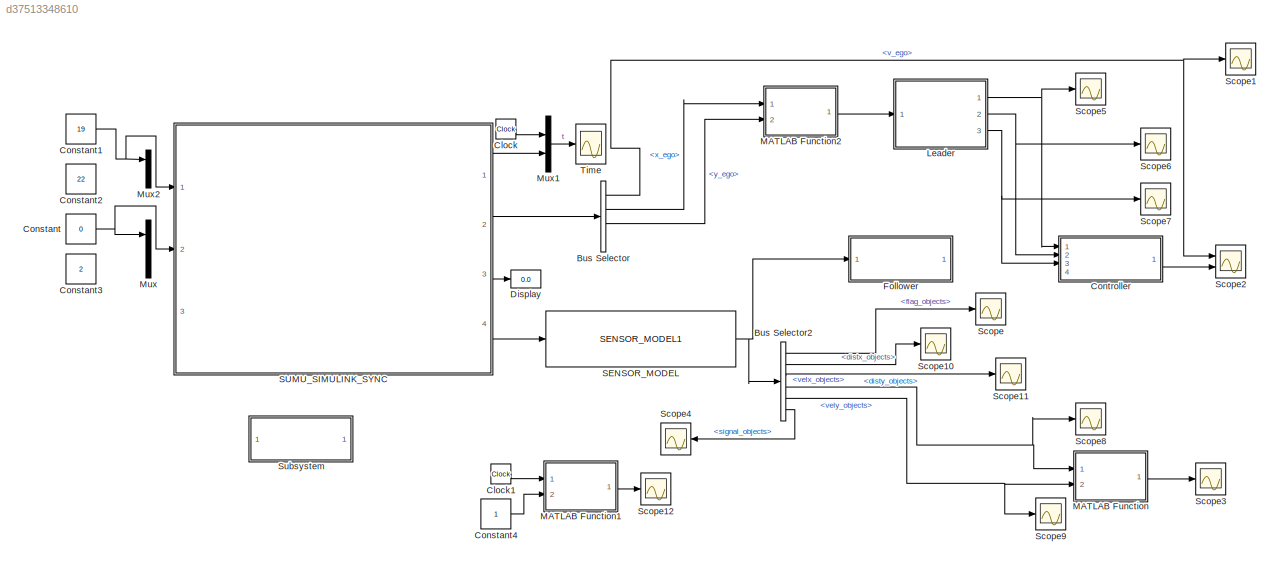
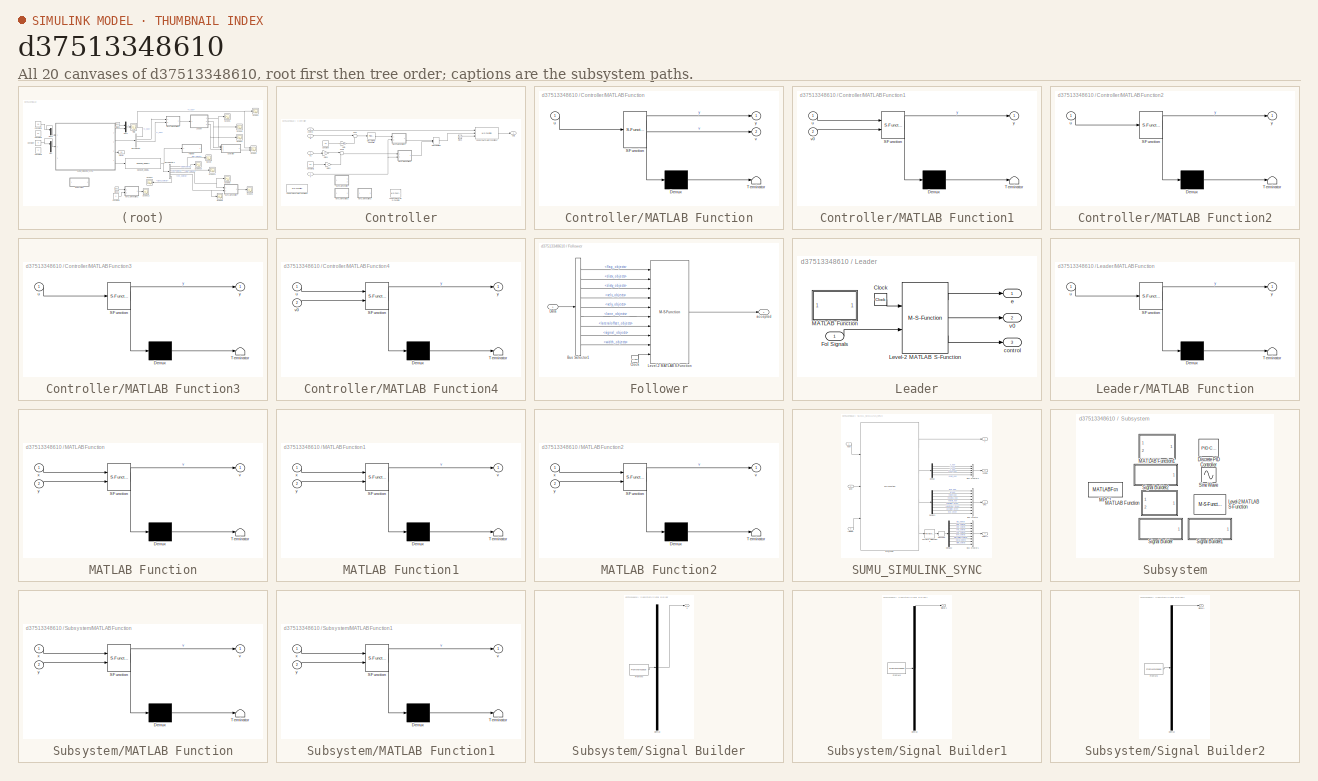
[diagram: thumbnail index - all 20 canvases of the model, root first then tree order]
MODEL slx_d37513348610
KIND model
CONFIG AbsTol = auto
CONFIG EnableMultiTasking = on
CONFIG FixedStep = auto
CONFIG MaxStep = auto
CONFIG MinStep = auto
CONFIG RelTol = 1e-3
CONFIG SampleTimeConstraint = Unconstrained
CONFIG Solver = FixedStepDiscrete
CONFIG SolverName = FixedStepDiscrete
CONFIG StartTime = 0.0
CONFIG StopTime = inf
WORKSPACE source: external: MATLAB File  (data not in archive)
BLOCK [BusSelector] Bus Selector
  OutputAsBus = off
  OutputSignals = v_ego,x_ego,y_ego,travel_ego
  Ports = [1, 4]
BLOCK [BusSelector] Bus Selector2
  OutputAsBus = off
  OutputSignals = flag_objects,distx_objects,disty_objects,velx_objects,vely_objects,signal_objects
  Ports = [1, 6]
BLOCK [Clock] Clock
BLOCK [Clock] Clock1
BLOCK [Constant] Constant
  Value = 0
BLOCK [Constant] Constant1
  Value = 19
BLOCK [Constant] Constant2
  Value = 22
BLOCK [Constant] Constant3
  Value = 2
BLOCK [Constant] Constant4
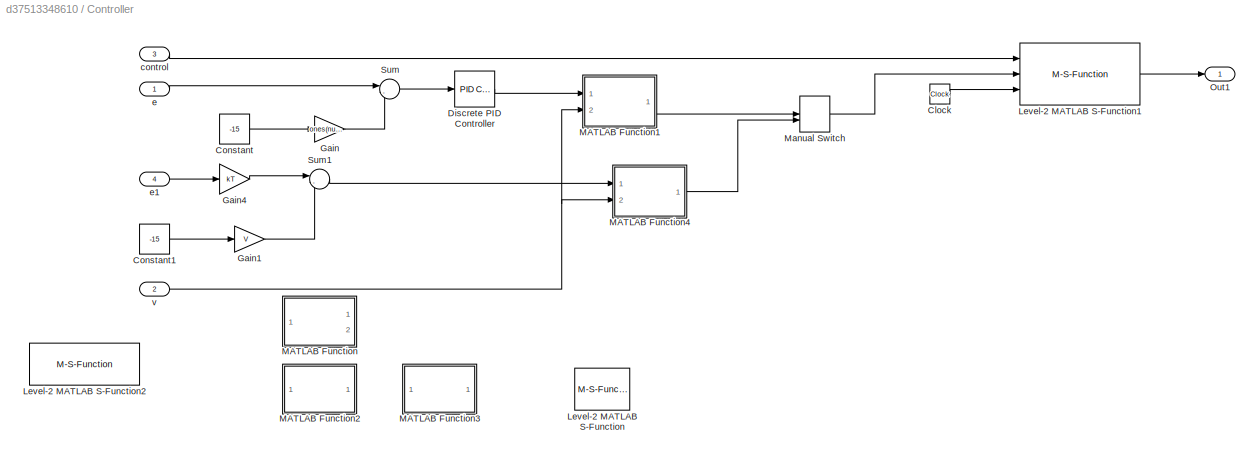
BLOCK [SubSystem] Controller
  Commented = on
  Ports = [4, 1]
  RequestExecContextInheritance = off
BLOCK [Clock] Controller/Clock
BLOCK [Constant] Controller/Constant
  Value = -15
BLOCK [Constant] Controller/Constant1
  Value = -15
BLOCK [Reference] Controller/Discrete PID Controller  REF=simulink/Continuous/PID Controller
  Ports = [1, 1]
  SourceBlock = simulink/Continuous/PID Controller
  SourceProductBaseCode = SL
  SourceProductName = Simulink
  SourceType = PID 1dof
BLOCK [Gain] Controller/Gain
  Gain = ones(numOfObj,1)
  OutDataTypeStr = Inherit: Inherit via internal rule
  ParamDataTypeStr = Inherit: Inherit via internal rule
  SaturateOnIntegerOverflow = off
BLOCK [Gain] Controller/Gain1
  Gain = V
  OutDataTypeStr = Inherit: Inherit via internal rule
  ParamDataTypeStr = Inherit: Inherit via internal rule
  SaturateOnIntegerOverflow = off
BLOCK [Gain] Controller/Gain4
  Gain = kT
  Multiplication = Matrix(K*u)
  OutDataTypeStr = Inherit: Inherit via internal rule
  ParamDataTypeStr = Inherit: Inherit via internal rule
  SaturateOnIntegerOverflow = off
BLOCK [M-S-Function] Controller/Level-2 MATLAB S-Function
  Commented = on
  FunctionName = follower123
  Parameters = numOfObj
  Ports = [1, 2]
BLOCK [M-S-Function] Controller/Level-2 MATLAB S-Function1
  FunctionName = controllerSpeed
  Parameters = numOfObj,Td
  Ports = [3, 1]
BLOCK [M-S-Function] Controller/Level-2 MATLAB S-Function2
  Commented = on
  FunctionName = speed
  Parameters = numOfObj
  Ports = [2, 1]
BLOCK [SubSystem] Controller/MATLAB Function
  Commented = on
  ErrorFcn = Stateflow.Translate.translate
  PermitHierarchicalResolution = ExplicitOnly
  Ports = [1, 2]
  RequestExecContextInheritance = off
  SFBlockType = MATLAB Function
  TreatAsAtomicUnit = on
BLOCK [Demux] Controller/MATLAB Function/ Demux 
  Outputs = 1
  Ports = [1, 1]
BLOCK [S-Function] Controller/MATLAB Function/ SFunction 
  EnableBusSupport = on
  FunctionName = sf_sfun
  PortCounts = [1 3]
  Ports = [1, 3]
  SFcnIsStateOwnerBlock = off
  SFunctionDeploymentMode = off
  Tag = Stateflow S-Function Example_SOMU_SYNC 5
BLOCK [Terminator] Controller/MATLAB Function/ Terminator 
BLOCK [Inport] Controller/MATLAB Function/u
  IconDisplay = Port number
BLOCK [Outport] Controller/MATLAB Function/v
  IconDisplay = Port number
  Port = 2
BLOCK [Outport] Controller/MATLAB Function/y
  IconDisplay = Port number
BLOCK [SubSystem] Controller/MATLAB Function1
  ErrorFcn = Stateflow.Translate.translate
  PermitHierarchicalResolution = ExplicitOnly
  Ports = [2, 1]
  RequestExecContextInheritance = off
  SFBlockType = MATLAB Function
  TreatAsAtomicUnit = on
BLOCK [Demux] Controller/MATLAB Function1/ Demux 
  Outputs = 1
  Ports = [1, 1]
BLOCK [S-Function] Controller/MATLAB Function1/ SFunction 
  EnableBusSupport = on
  FunctionName = sf_sfun
  Parameters = Td
  PortCounts = [2 2]
  Ports = [2, 2]
  SFcnIsStateOwnerBlock = off
  SFunctionDeploymentMode = off
  Tag = Stateflow S-Function Example_SOMU_SYNC 6
BLOCK [Terminator] Controller/MATLAB Function1/ Terminator 
BLOCK [Inport] Controller/MATLAB Function1/u
  IconDisplay = Port number
BLOCK [Inport] Controller/MATLAB Function1/v0
  IconDisplay = Port number
  Port = 2
BLOCK [Outport] Controller/MATLAB Function1/y
  IconDisplay = Port number
BLOCK [SubSystem] Controller/MATLAB Function2
  Commented = on
  ErrorFcn = Stateflow.Translate.translate
  PermitHierarchicalResolution = ExplicitOnly
  Ports = [1, 1]
  RequestExecContextInheritance = off
  SFBlockType = MATLAB Function
  TreatAsAtomicUnit = on
BLOCK [Demux] Controller/MATLAB Function2/ Demux 
  Outputs = 1
  Ports = [1, 1]
BLOCK [S-Function] Controller/MATLAB Function2/ SFunction 
  EnableBusSupport = on
  FunctionName = sf_sfun
  PortCounts = [1 2]
  Ports = [1, 2]
  SFcnIsStateOwnerBlock = off
  SFunctionDeploymentMode = off
  Tag = Stateflow S-Function Example_SOMU_SYNC 7
BLOCK [Terminator] Controller/MATLAB Function2/ Terminator 
BLOCK [Inport] Controller/MATLAB Function2/u
  IconDisplay = Port number
BLOCK [Outport] Controller/MATLAB Function2/y
  IconDisplay = Port number
BLOCK [SubSystem] Controller/MATLAB Function3
  Commented = on
  ErrorFcn = Stateflow.Translate.translate
  PermitHierarchicalResolution = ExplicitOnly
  Ports = [1, 1]
  RequestExecContextInheritance = off
  SFBlockType = MATLAB Function
  TreatAsAtomicUnit = on
BLOCK [Demux] Controller/MATLAB Function3/ Demux 
  Outputs = 1
  Ports = [1, 1]
BLOCK [S-Function] Controller/MATLAB Function3/ SFunction 
  EnableBusSupport = on
  FunctionName = sf_sfun
  PortCounts = [1 2]
  Ports = [1, 2]
  SFcnIsStateOwnerBlock = off
  SFunctionDeploymentMode = off
  Tag = Stateflow S-Function Example_SOMU_SYNC 9
BLOCK [Terminator] Controller/MATLAB Function3/ Terminator 
BLOCK [Inport] Controller/MATLAB Function3/u
  IconDisplay = Port number
BLOCK [Outport] Controller/MATLAB Function3/y
  IconDisplay = Port number
BLOCK [SubSystem] Controller/MATLAB Function4
  ErrorFcn = Stateflow.Translate.translate
  PermitHierarchicalResolution = ExplicitOnly
  Ports = [2, 1]
  RequestExecContextInheritance = off
  SFBlockType = MATLAB Function
  TreatAsAtomicUnit = on
BLOCK [Demux] Controller/MATLAB Function4/ Demux 
  Outputs = 1
  Ports = [1, 1]
BLOCK [S-Function] Controller/MATLAB Function4/ SFunction 
  EnableBusSupport = on
  FunctionName = sf_sfun
  Parameters = Td
  PortCounts = [2 2]
  Ports = [2, 2]
  SFcnIsStateOwnerBlock = off
  SFunctionDeploymentMode = off
  Tag = Stateflow S-Function Example_SOMU_SYNC 11
BLOCK [Terminator] Controller/MATLAB Function4/ Terminator 
BLOCK [Inport] Controller/MATLAB Function4/u
  IconDisplay = Port number
BLOCK [Inport] Controller/MATLAB Function4/v0
  IconDisplay = Port number
  Port = 2
BLOCK [Outport] Controller/MATLAB Function4/y
  IconDisplay = Port number
BLOCK [ManualSwitch] Controller/Manual Switch
  CurrentSetting = 0
BLOCK [Outport] Controller/Out1
  IconDisplay = Port number
BLOCK [Sum] Controller/Sum
  IconShape = round
  InputSameDT = off
  Inputs = |-+
  OutDataTypeStr = Inherit: Inherit via internal rule
  Ports = [2, 1]
  SaturateOnIntegerOverflow = off
BLOCK [Sum] Controller/Sum1
  IconShape = round
  InputSameDT = off
  Inputs = |-+
  OutDataTypeStr = Inherit: Inherit via internal rule
  Ports = [2, 1]
  SaturateOnIntegerOverflow = off
BLOCK [Inport] Controller/control
  IconDisplay = Port number
  Port = 3
BLOCK [Inport] Controller/e
  IconDisplay = Port number
BLOCK [Inport] Controller/e1
  IconDisplay = Port number
  Port = 4
BLOCK [Inport] Controller/v
  IconDisplay = Port number
  Port = 2
BLOCK [Display] Display
  Decimation = 1
  Format = long
  Ports = [1]
BLOCK [SubSystem] Follower
  Commented = on
  Ports = [1, 1]
  RequestExecContextInheritance = off
BLOCK [BusSelector] Follower/Bus Selector1
  OutputAsBus = off
  OutputSignals = flag_objects,distx_objects,disty_objects,velx_objects,vely_objects,lane_objects,lateraloffset_objects,signal_objects,width_objects
  Ports = [1, 9]
BLOCK [Clock] Follower/Clock
BLOCK [Inport] Follower/Data
  IconDisplay = Port number
BLOCK [M-S-Function] Follower/Level-2 MATLAB S-Function
  FunctionName = followerGUI
  Parameters = numOfObj,Td
  Ports = [10, 1]
BLOCK [Outport] Follower/accepted
  IconDisplay = Port number
BLOCK [SubSystem] Leader
  Commented = on
  Ports = [1, 3]
  RequestExecContextInheritance = off
BLOCK [Clock] Leader/Clock
BLOCK [Inport] Leader/Fol Signals
  IconDisplay = Port number
BLOCK [M-S-Function] Leader/Level-2 MATLAB S-Function
  FunctionName = leaderGUI
  Parameters = numOfObj,Td
  Ports = [2, 3]
BLOCK [SubSystem] Leader/MATLAB Function
  Commented = on
  ErrorFcn = Stateflow.Translate.translate
  PermitHierarchicalResolution = ExplicitOnly
  Ports = [1, 1]
  RequestExecContextInheritance = off
  SFBlockType = MATLAB Function
  TreatAsAtomicUnit = on
BLOCK [Demux] Leader/MATLAB Function/ Demux 
  Outputs = 1
  Ports = [1, 1]
BLOCK [S-Function] Leader/MATLAB Function/ SFunction 
  EnableBusSupport = on
  FunctionName = sf_sfun
  PortCounts = [1 2]
  Ports = [1, 2]
  SFcnIsStateOwnerBlock = off
  SFunctionDeploymentMode = off
  Tag = Stateflow S-Function Example_SOMU_SYNC 4
BLOCK [Terminator] Leader/MATLAB Function/ Terminator 
BLOCK [Inport] Leader/MATLAB Function/u
  IconDisplay = Port number
BLOCK [Outport] Leader/MATLAB Function/y
  IconDisplay = Port number
BLOCK [Outport] Leader/control
  IconDisplay = Port number
  Port = 3
BLOCK [Outport] Leader/e
  IconDisplay = Port number
BLOCK [Outport] Leader/v0
  IconDisplay = Port number
  Port = 2
BLOCK [SubSystem] MATLAB Function
  ErrorFcn = Stateflow.Translate.translate
  PermitHierarchicalResolution = ExplicitOnly
  Ports = [2, 1]
  RequestExecContextInheritance = off
  SFBlockType = MATLAB Function
  TreatAsAtomicUnit = on
BLOCK [Demux] MATLAB Function/ Demux 
  Outputs = 1
  Ports = [1, 1]
BLOCK [S-Function] MATLAB Function/ SFunction 
  EnableBusSupport = on
  FunctionName = sf_sfun
  PortCounts = [2 2]
  Ports = [2, 2]
  SFcnIsStateOwnerBlock = off
  SFunctionDeploymentMode = off
  Tag = Stateflow S-Function Example_SOMU_SYNC 8
BLOCK [Terminator] MATLAB Function/ Terminator 
BLOCK [Outport] MATLAB Function/v
  IconDisplay = Port number
BLOCK [Inport] MATLAB Function/x
  IconDisplay = Port number
BLOCK [Inport] MATLAB Function/y
  IconDisplay = Port number
  Port = 2
BLOCK [SubSystem] MATLAB Function1
  ErrorFcn = Stateflow.Translate.translate
  PermitHierarchicalResolution = ExplicitOnly
  Ports = [2, 1]
  RequestExecContextInheritance = off
  SFBlockType = MATLAB Function
  TreatAsAtomicUnit = on
BLOCK [Demux] MATLAB Function1/ Demux 
  Outputs = 1
  Ports = [1, 1]
BLOCK [S-Function] MATLAB Function1/ SFunction 
  EnableBusSupport = on
  FunctionName = sf_sfun
  PortCounts = [2 2]
  Ports = [2, 2]
  SFcnIsStateOwnerBlock = off
  SFunctionDeploymentMode = off
  Tag = Stateflow S-Function Example_SOMU_SYNC 10
BLOCK [Terminator] MATLAB Function1/ Terminator 
BLOCK [Outport] MATLAB Function1/v
  IconDisplay = Port number
BLOCK [Inport] MATLAB Function1/x
  IconDisplay = Port number
BLOCK [Inport] MATLAB Function1/y
  IconDisplay = Port number
  Port = 2
BLOCK [SubSystem] MATLAB Function2
  Commented = on
  ErrorFcn = Stateflow.Translate.translate
  PermitHierarchicalResolution = ExplicitOnly
  Ports = [2, 1]
  RequestExecContextInheritance = off
  SFBlockType = MATLAB Function
  TreatAsAtomicUnit = on
BLOCK [Demux] MATLAB Function2/ Demux 
  Outputs = 1
  Ports = [1, 1]
BLOCK [S-Function] MATLAB Function2/ SFunction 
  EnableBusSupport = on
  FunctionName = sf_sfun
  PortCounts = [2 2]
  Ports = [2, 2]
  SFcnIsStateOwnerBlock = off
  SFunctionDeploymentMode = off
  Tag = Stateflow S-Function Example_SOMU_SYNC 3
BLOCK [Terminator] MATLAB Function2/ Terminator 
BLOCK [Outport] MATLAB Function2/v
  IconDisplay = Port number
BLOCK [Inport] MATLAB Function2/x
  IconDisplay = Port number
BLOCK [Inport] MATLAB Function2/y
  IconDisplay = Port number
  Port = 2
BLOCK [Mux] Mux
  DisplayOption = bar
  Inputs = 3
  Ports = [3, 1]
BLOCK [Mux] Mux1
  DisplayOption = bar
  Inputs = 2
  Ports = [2, 1]
BLOCK [Mux] Mux2
  DisplayOption = bar
  Inputs = 3
  Ports = [3, 1]
BLOCK [Reference] SENSOR_MODEL  REF=Lib_SENSOR/SENSOR_MODEL1
  Ports = [1, 1]
  SourceBlock = Lib_SENSOR/SENSOR_MODEL1
  SourceType = SENSOR MODELS
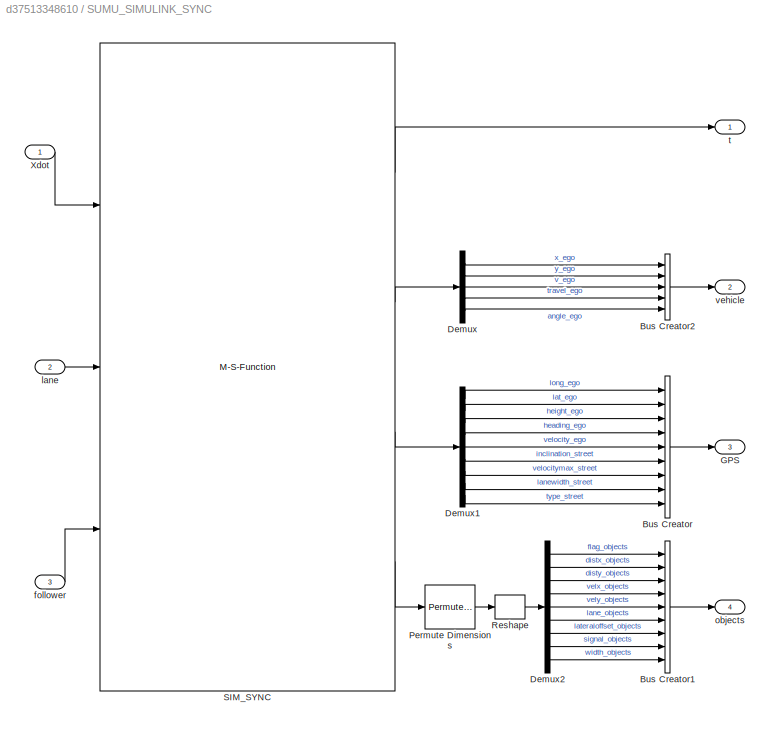
BLOCK [SubSystem] SUMU_SIMULINK_SYNC
  AncestorBlock = Lib_SUMOInterface/SUMU_SIMULINK_SYNC
  Ports = [3, 4]
  RequestExecContextInheritance = off
BLOCK [BusCreator] SUMU_SIMULINK_SYNC/Bus Creator
  DisplayOption = bar
  InheritFromInputs = on
  Inputs = 9
  Ports = [9, 1]
BLOCK [BusCreator] SUMU_SIMULINK_SYNC/Bus Creator1
  DisplayOption = bar
  InheritFromInputs = on
  Inputs = 9
  Ports = [9, 1]
BLOCK [BusCreator] SUMU_SIMULINK_SYNC/Bus Creator2
  DisplayOption = bar
  InheritFromInputs = on
  Inputs = 5
  Ports = [5, 1]
BLOCK [Demux] SUMU_SIMULINK_SYNC/Demux
  DisplayOption = bar
  Outputs = 5
  Ports = [1, 5]
BLOCK [Demux] SUMU_SIMULINK_SYNC/Demux1
  DisplayOption = bar
  Outputs = 9
  Ports = [1, 9]
BLOCK [Demux] SUMU_SIMULINK_SYNC/Demux2
  DisplayOption = bar
  Outputs = [-1,-1,-1,-1,-1,-1,-1,-1,-1]
  Ports = [1, 9]
BLOCK [Outport] SUMU_SIMULINK_SYNC/GPS
  IconDisplay = Port number
  Port = 3
BLOCK [PermuteDimensions] SUMU_SIMULINK_SYNC/Permute Dimensions
BLOCK [Reshape] SUMU_SIMULINK_SYNC/Reshape
  Ports = [1, 1]
BLOCK [M-S-Function] SUMU_SIMULINK_SYNC/SIM_SYNC
  FunctionName = sf2SUMO_SYNC
  Parameters = SumoTs,EgoName,NumVehicles,SumoCfg,SumoIP,SumoPort,SumoGui,SumoOptions,NumTLights,SensorRange
  Ports = [3, 4]
BLOCK [Inport] SUMU_SIMULINK_SYNC/Xdot
  IconDisplay = Port number
BLOCK [Inport] SUMU_SIMULINK_SYNC/follower
  IconDisplay = Port number
  Port = 3
BLOCK [Inport] SUMU_SIMULINK_SYNC/lane
  IconDisplay = Port number
  Port = 2
BLOCK [Outport] SUMU_SIMULINK_SYNC/objects
  IconDisplay = Port number
  Port = 4
BLOCK [Outport] SUMU_SIMULINK_SYNC/t
  IconDisplay = Port number
BLOCK [Outport] SUMU_SIMULINK_SYNC/vehicle
  IconDisplay = Port number
  Port = 2
BLOCK [Scope] Scope
  Floating = off
  NumInputPorts = 1
  Ports = [1]
  ScopeSpecificationString = Simulink.scopes.TimeScopeBlockCfg('CurrentConfiguration', extmgr.ConfigurationSet(extmgr.Configuration('Core','General UI',true),extmgr.Configuration('Core','Source UI',true),extmgr.Configuration('Sources','WiredSimulink',true,'DataLoggingVariableName','ScopeData1'),extmgr.Configuration('Visuals','Time Domain',true,'SerializedDisplays',{struct('MinYLimReal','-0.25','MaxYLimReal','2.25','YLabelReal...<+1860ch>
BLOCK [Scope] Scope1
  Commented = on
  Floating = off
  NumInputPorts = 1
  Ports = [1]
  ScopeSpecificationString = Simulink.scopes.TimeScopeBlockCfg('CurrentConfiguration', extmgr.ConfigurationSet(extmgr.Configuration('Core','General UI',true),extmgr.Configuration('Core','Source UI',true),extmgr.Configuration('Sources','WiredSimulink',true,'DataLoggingVariableName','ScopeData1'),extmgr.Configuration('Visuals','Time Domain',true,'SerializedDisplays',{struct('MinYLimReal','-2.875','MaxYLimReal','25.875','YLabelR...<+1431ch>
BLOCK [Scope] Scope10
  Floating = off
  NumInputPorts = 1
  Ports = [1]
  ScopeSpecificationString = Simulink.scopes.TimeScopeBlockCfg('CurrentConfiguration', extmgr.ConfigurationSet(extmgr.Configuration('Core','General UI',true),extmgr.Configuration('Core','Source UI',true),extmgr.Configuration('Sources','WiredSimulink',true,'DataLoggingVariableName','ScopeData3'),extmgr.Configuration('Visuals','Time Domain',true,'SerializedDisplays',{struct('MinYLimReal','-253.67576','MaxYLimReal','245.77951','...<+1645ch>
BLOCK [Scope] Scope11
  Floating = off
  NumInputPorts = 1
  Ports = [1]
  ScopeSpecificationString = Simulink.scopes.TimeScopeBlockCfg('CurrentConfiguration', extmgr.ConfigurationSet(extmgr.Configuration('Core','General UI',true),extmgr.Configuration('Core','Source UI',true),extmgr.Configuration('Sources','WiredSimulink',true,'DataLoggingVariableName','ScopeData4'),extmgr.Configuration('Visuals','Time Domain',true,'SerializedDisplays',{struct('MinYLimReal','-24.88093','MaxYLimReal','223.92838','Y...<+1641ch>
BLOCK [Scope] Scope12
  Floating = off
  NumInputPorts = 1
  Ports = [1]
  ScopeSpecificationString = Simulink.scopes.TimeScopeBlockCfg('CurrentConfiguration', extmgr.ConfigurationSet(extmgr.Configuration('Core','General UI',true),extmgr.Configuration('Core','Source UI',true),extmgr.Configuration('Sources','WiredSimulink',true,'DataLoggingVariableName','ScopeData1'),extmgr.Configuration('Visuals','Time Domain',true,'SerializedDisplays',{struct('MinYLimReal','-3.27189','MaxYLimReal','29.44705','YLa...<+1635ch>
BLOCK [Scope] Scope2
  Commented = on
  Floating = off
  NumInputPorts = 2
  Ports = [2]
  ScopeSpecificationString = Simulink.scopes.TimeScopeBlockCfg('CurrentConfiguration', extmgr.ConfigurationSet(extmgr.Configuration('Core','General UI',true),extmgr.Configuration('Core','Source UI',true),extmgr.Configuration('Sources','WiredSimulink',true,'DataLoggingVariableName','ScopeData1'),extmgr.Configuration('Visuals','Time Domain',true,'SerializedDisplays',{struct('MinYLimReal','-5.82429','MaxYLimReal','42.41862','YLa...<+1845ch>
BLOCK [Scope] Scope3
  Floating = off
  NumInputPorts = 1
  Ports = [1]
  ScopeSpecificationString = Simulink.scopes.TimeScopeBlockCfg('CurrentConfiguration', extmgr.ConfigurationSet(extmgr.Configuration('Core','General UI',true),extmgr.Configuration('Core','Source UI',true),extmgr.Configuration('Sources','WiredSimulink',true,'DataLoggingVariableName','ScopeData2'),extmgr.Configuration('Visuals','Time Domain',true,'SerializedDisplays',{struct('MinYLimReal','-3.27189','MaxYLimReal','29.44705','YLa...<+1635ch>
BLOCK [Scope] Scope4
  Commented = on
  Floating = off
  NumInputPorts = 1
  Ports = [1]
  ScopeSpecificationString = Simulink.scopes.TimeScopeBlockCfg('CurrentConfiguration', extmgr.ConfigurationSet(extmgr.Configuration('Core','General UI',true),extmgr.Configuration('Core','Source UI',true),extmgr.Configuration('Sources','WiredSimulink',true,'DataLoggingVariableName','ScopeData3'),extmgr.Configuration('Visuals','Time Domain',true,'SerializedDisplays',{struct('MinYLimReal','-1.00000','MaxYLimReal','1.00000','YLab...<+1598ch>
BLOCK [Scope] Scope5
  Commented = on
  Floating = off
  NumInputPorts = 1
  Ports = [1]
  ScopeSpecificationString = Simulink.scopes.TimeScopeBlockCfg('CurrentConfiguration', extmgr.ConfigurationSet(extmgr.Configuration('Core','General UI',true),extmgr.Configuration('Core','Source UI',true),extmgr.Configuration('Sources','WiredSimulink',true,'DataLoggingVariableName','ScopeData4'),extmgr.Configuration('Visuals','Time Domain',true,'SerializedDisplays',{struct('MinYLimReal','-76.66441','MaxYLimReal','8.51827','YLa...<+1546ch>
BLOCK [Scope] Scope6
  Commented = on
  Floating = off
  NumInputPorts = 1
  Ports = [1]
  ScopeSpecificationString = Simulink.scopes.TimeScopeBlockCfg('CurrentConfiguration', extmgr.ConfigurationSet(extmgr.Configuration('Core','General UI',true),extmgr.Configuration('Core','Source UI',true),extmgr.Configuration('Sources','WiredSimulink',true,'DataLoggingVariableName','ScopeData1'),extmgr.Configuration('Visuals','Time Domain',true,'SerializedDisplays',{struct('MinYLimReal','-3.62378','MaxYLimReal','32.61406','YLa...<+1565ch>
BLOCK [Scope] Scope7
  Commented = on
  Floating = off
  NumInputPorts = 1
  Ports = [1]
  ScopeSpecificationString = Simulink.scopes.TimeScopeBlockCfg('CurrentConfiguration', extmgr.ConfigurationSet(extmgr.Configuration('Core','General UI',true),extmgr.Configuration('Core','Source UI',true),extmgr.Configuration('Sources','WiredSimulink',true,'DataLoggingVariableName','ScopeData2'),extmgr.Configuration('Visuals','Time Domain',true,'SerializedDisplays',{struct('MinYLimReal','-0.125','MaxYLimReal','1.125','YLabelRe...<+1399ch>
BLOCK [Scope] Scope8
  Floating = off
  NumInputPorts = 1
  Ports = [1]
  ScopeSpecificationString = Simulink.scopes.TimeScopeBlockCfg('CurrentConfiguration', extmgr.ConfigurationSet(extmgr.Configuration('Core','General UI',true),extmgr.Configuration('Core','Source UI',true),extmgr.Configuration('Sources','WiredSimulink',true,'DataLoggingVariableName','ScopeData1'),extmgr.Configuration('Visuals','Time Domain',true,'SerializedDisplays',{struct('MinYLimReal','-4.95151','MaxYLimReal','44.56361','YLa...<+1533ch>
BLOCK [Scope] Scope9
  Floating = off
  NumInputPorts = 1
  Ports = [1]
  ScopeSpecificationString = Simulink.scopes.TimeScopeBlockCfg('CurrentConfiguration', extmgr.ConfigurationSet(extmgr.Configuration('Core','General UI',true),extmgr.Configuration('Core','Source UI',true),extmgr.Configuration('Sources','WiredSimulink',true,'DataLoggingVariableName','ScopeData2'),extmgr.Configuration('Visuals','Time Domain',true,'SerializedDisplays',{struct('MinYLimReal','-4.95151','MaxYLimReal','44.56361','YLa...<+1533ch>
BLOCK [SubSystem] Subsystem
  Commented = on
  Ports = []
  RequestExecContextInheritance = off
BLOCK [Reference] Subsystem/Discrete PID Controller  REF=simulink/Continuous/PID Controller
  Commented = on
  Ports = [1, 1]
  SourceBlock = simulink/Continuous/PID Controller
  SourceProductBaseCode = SL
  SourceProductName = Simulink
  SourceType = PID 1dof
BLOCK [M-S-Function] Subsystem/Level-2 MATLAB S-Function
  Commented = on
  FunctionName = leader_veh
  Ports = [1, 1]
BLOCK [SubSystem] Subsystem/MATLAB Function
  Commented = on
  ErrorFcn = Stateflow.Translate.translate
  PermitHierarchicalResolution = ExplicitOnly
  Ports = [2, 1]
  RequestExecContextInheritance = off
  SFBlockType = MATLAB Function
  TreatAsAtomicUnit = on
BLOCK [Demux] Subsystem/MATLAB Function/ Demux 
  Outputs = 1
  Ports = [1, 1]
BLOCK [S-Function] Subsystem/MATLAB Function/ SFunction 
  EnableBusSupport = on
  FunctionName = sf_sfun
  PortCounts = [2 2]
  Ports = [2, 2]
  SFcnIsStateOwnerBlock = off
  SFunctionDeploymentMode = off
  Tag = Stateflow S-Function Example_SOMU_SYNC 2
BLOCK [Terminator] Subsystem/MATLAB Function/ Terminator 
BLOCK [Outport] Subsystem/MATLAB Function/v
  IconDisplay = Port number
BLOCK [Inport] Subsystem/MATLAB Function/x
  IconDisplay = Port number
BLOCK [Inport] Subsystem/MATLAB Function/y
  IconDisplay = Port number
  Port = 2
BLOCK [SubSystem] Subsystem/MATLAB Function1
  Commented = on
  ErrorFcn = Stateflow.Translate.translate
  PermitHierarchicalResolution = ExplicitOnly
  Ports = [2, 1]
  RequestExecContextInheritance = off
  SFBlockType = MATLAB Function
  TreatAsAtomicUnit = on
BLOCK [Demux] Subsystem/MATLAB Function1/ Demux 
  Outputs = 1
  Ports = [1, 1]
BLOCK [S-Function] Subsystem/MATLAB Function1/ SFunction 
  EnableBusSupport = on
  FunctionName = sf_sfun
  PortCounts = [2 2]
  Ports = [2, 2]
  SFcnIsStateOwnerBlock = off
  SFunctionDeploymentMode = off
  Tag = Stateflow S-Function Example_SOMU_SYNC 1
BLOCK [Terminator] Subsystem/MATLAB Function1/ Terminator 
BLOCK [Outport] Subsystem/MATLAB Function1/v
  IconDisplay = Port number
BLOCK [Inport] Subsystem/MATLAB Function1/x
  IconDisplay = Port number
BLOCK [Inport] Subsystem/MATLAB Function1/y
  IconDisplay = Port number
  Port = 2
BLOCK [MATLABFcn] Subsystem/MPC1
  Commented = on
  MATLABFcn = MPCController1(u(1:2),u(3),u(4))
  Ports = [1, 1]
BLOCK [SubSystem] Subsystem/Signal Builder
  ClipboardFcn = sigbuilder_block('clipboard');
  CloseFcn = sigbuilder_block('close');
  Commented = on
  ContinueFcn = sigbuilder_block('continue');
  CopyFcn = sigbuilder_block('copy');
  DeleteFcn = sigbuilder_block('delete');
  LoadFcn = sigbuilder_block('load');
  MaskHideContents = on
  ModelCloseFcn = sigbuilder_block('modelClose');
  NameChangeFcn = sigbuilder_block('namechange');
  OpenFcn = sigbuilder_block('open',[435.75 150.75 549 361.5 ]);
  PauseFcn = sigbuilder_block('pause');
  Ports = [0, 1]
  PreSaveFcn = sigbuilder_block('preSave');
  RequestExecContextInheritance = off
  StartFcn = sigbuilder_block('start');
  StopFcn = sigbuilder_block('stop');
  Tag = STV Subsys
BLOCK [Demux] Subsystem/Signal Builder/Demux
  Outputs = 1
  Ports = [1, 1]
  Tag = STV Demux
BLOCK [FromWorkspace] Subsystem/Signal Builder/FromWs
  SampleTime = 0
  Tag = STV FromWs
  VariableName = tuvar
  ZeroCross = on
BLOCK [Outport] Subsystem/Signal Builder/v
  IconDisplay = Port number
  Tag = STV Outport
BLOCK [SubSystem] Subsystem/Signal Builder1
  ClipboardFcn = sigbuilder_block('clipboard');
  CloseFcn = sigbuilder_block('close');
  Commented = on
  ContinueFcn = sigbuilder_block('continue');
  CopyFcn = sigbuilder_block('copy');
  DeleteFcn = sigbuilder_block('delete');
  LoadFcn = sigbuilder_block('load');
  MaskHideContents = on
  ModelCloseFcn = sigbuilder_block('modelClose');
  NameChangeFcn = sigbuilder_block('namechange');
  OpenFcn = sigbuilder_block('open',[437.25 199.5 550.5 399.75 ]);
  PauseFcn = sigbuilder_block('pause');
  Ports = [0, 1]
  PreSaveFcn = sigbuilder_block('preSave');
  RequestExecContextInheritance = off
  StartFcn = sigbuilder_block('start');
  StopFcn = sigbuilder_block('stop');
  Tag = STV Subsys
BLOCK [Demux] Subsystem/Signal Builder1/Demux
  Outputs = 1
  Ports = [1, 1]
  Tag = STV Demux
BLOCK [FromWorkspace] Subsystem/Signal Builder1/FromWs
  SampleTime = 0
  Tag = STV FromWs
  VariableName = tuvar
  ZeroCross = on
BLOCK [Outport] Subsystem/Signal Builder1/Signal 1
  IconDisplay = Port number
  Tag = STV Outport
BLOCK [SubSystem] Subsystem/Signal Builder2
  ClipboardFcn = sigbuilder_block('clipboard');
  CloseFcn = sigbuilder_block('close');
  Commented = on
  ContinueFcn = sigbuilder_block('continue');
  CopyFcn = sigbuilder_block('copy');
  DeleteFcn = sigbuilder_block('delete');
  LoadFcn = sigbuilder_block('load');
  MaskHideContents = on
  ModelCloseFcn = sigbuilder_block('modelClose');
  NameChangeFcn = sigbuilder_block('namechange');
  OpenFcn = sigbuilder_block('open',[6 30 1012.5 447.75 ]);
  PauseFcn = sigbuilder_block('pause');
  Ports = [0, 1]
  PreSaveFcn = sigbuilder_block('preSave');
  RequestExecContextInheritance = off
  StartFcn = sigbuilder_block('start');
  StopFcn = sigbuilder_block('stop');
  Tag = STV Subsys
BLOCK [Demux] Subsystem/Signal Builder2/Demux
  Outputs = 1
  Ports = [1, 1]
  Tag = STV Demux
BLOCK [FromWorkspace] Subsystem/Signal Builder2/FromWs
  SampleTime = 0
  Tag = STV FromWs
  VariableName = tuvar
  ZeroCross = on
BLOCK [Outport] Subsystem/Signal Builder2/Signal 1
  IconDisplay = Port number
  Tag = STV Outport
BLOCK [Sin] Subsystem/Sine Wave
  Bias = 20
  Commented = on
  Frequency = 0.1
  Ports = [0, 1]
  SampleTime = 0
BLOCK [Scope] Time
  Floating = off
  NumInputPorts = 1
  Ports = [1]
  ScopeSpecificationString = Simulink.scopes.TimeScopeBlockCfg('CurrentConfiguration', extmgr.ConfigurationSet(extmgr.Configuration('Core','General UI',true,'FigureColor',[1 1 1]),extmgr.Configuration('Core','Source UI',true),extmgr.Configuration('Sources','WiredSimulink',true,'DataLoggingVariableName','ScopeData1','DataLoggingSaveFormat','StructureWithTime','DataLoggingDecimation','1','DataLoggingDecimateData',true),extmgr.C...<+2881ch>
LINE Bus Selector2:1 -> Scope:1
LINE Bus Selector2:2 -> Scope10:1
LINE Bus Selector2:3 -> Scope11:1
NET Bus Selector2:4 -> MATLAB Function:1, Scope8:1
NET Bus Selector2:5 -> MATLAB Function:2, Scope9:1
LINE Bus Selector2:6 -> Scope4:1
NET Bus Selector:1 -> Scope1:1, Scope2:1
LINE Bus Selector:2 -> MATLAB Function2:1
LINE Bus Selector:3 -> MATLAB Function2:2
LINE Clock1:1 -> MATLAB Function1:1
LINE Clock:1 -> Mux1:1
NET Constant1:1 -> Mux2:1, SUMU_SIMULINK_SYNC:1
LINE Constant4:1 -> MATLAB Function1:2
NET Constant:1 -> Mux:1, SUMU_SIMULINK_SYNC:2
LINE Controller/Clock:1 -> Controller/Level-2 MATLAB S-Function1:3
LINE Controller/Constant1:1 -> Controller/Gain1:1
LINE Controller/Constant:1 -> Controller/Gain:1
LINE Controller/Discrete PID Controller:1 -> Controller/MATLAB Function1:1
LINE Controller/Gain1:1 -> Controller/Sum1:2
LINE Controller/Gain4:1 -> Controller/Sum1:1
LINE Controller/Gain:1 -> Controller/Sum:2
LINE Controller/Level-2 MATLAB S-Function1:1 -> Controller/Out1:1
LINE Controller/MATLAB Function1:1 -> Controller/Manual Switch:1
LINE Controller/MATLAB Function4:1 -> Controller/Manual Switch:2
LINE Controller/Manual Switch:1 -> Controller/Level-2 MATLAB S-Function1:2
LINE Controller/Sum1:1 -> Controller/MATLAB Function4:1
LINE Controller/Sum:1 -> Controller/Discrete PID Controller:1
LINE Controller/control:1 -> Controller/Level-2 MATLAB S-Function1:1
LINE Controller/e1:1 -> Controller/Gain4:1
LINE Controller/e:1 -> Controller/Sum:1
NET Controller/v:1 -> Controller/MATLAB Function1:2, Controller/MATLAB Function4:2
LINE Controller:1 -> Scope2:2
LINE Follower/Bus Selector1:1 -> Follower/Level-2 MATLAB S-Function:1
LINE Follower/Bus Selector1:2 -> Follower/Level-2 MATLAB S-Function:2
LINE Follower/Bus Selector1:3 -> Follower/Level-2 MATLAB S-Function:3
LINE Follower/Bus Selector1:4 -> Follower/Level-2 MATLAB S-Function:4
LINE Follower/Bus Selector1:5 -> Follower/Level-2 MATLAB S-Function:5
LINE Follower/Bus Selector1:6 -> Follower/Level-2 MATLAB S-Function:6
LINE Follower/Bus Selector1:7 -> Follower/Level-2 MATLAB S-Function:7
LINE Follower/Bus Selector1:8 -> Follower/Level-2 MATLAB S-Function:8
LINE Follower/Bus Selector1:9 -> Follower/Level-2 MATLAB S-Function:9
LINE Follower/Clock:1 -> Follower/Level-2 MATLAB S-Function:10
LINE Follower/Data:1 -> Follower/Bus Selector1:1
LINE Follower/Level-2 MATLAB S-Function:1 -> Follower/accepted:1
LINE Leader/Clock:1 -> Leader/Level-2 MATLAB S-Function:1
LINE Leader/Fol Signals:1 -> Leader/Level-2 MATLAB S-Function:2
LINE Leader/Level-2 MATLAB S-Function:1 -> Leader/e:1
LINE Leader/Level-2 MATLAB S-Function:2 -> Leader/v0:1
LINE Leader/Level-2 MATLAB S-Function:3 -> Leader/control:1
NET Leader:1 -> Controller:1, Scope5:1
NET Leader:2 -> Controller:2, Scope6:1
NET Leader:3 -> Controller:3, Scope7:1
LINE MATLAB Function1:1 -> Scope12:1
LINE MATLAB Function2:1 -> Leader:1
LINE MATLAB Function:1 -> Scope3:1
LINE Mux1:1 -> Time:1
NET SENSOR_MODEL:1 -> Bus Selector2:1, Follower:1
LINE SUMU_SIMULINK_SYNC:1 -> Mux1:2
LINE SUMU_SIMULINK_SYNC:2 -> Bus Selector:1
LINE SUMU_SIMULINK_SYNC:3 -> Display:1
LINE SUMU_SIMULINK_SYNC:4 -> SENSOR_MODEL:1
note: NET lines group one-source signal fan-out (src -> all destinations, sorted); 1:1 wires keep LINE
CHART Subsystem/MATLAB Function1 states=1 transitions=1
  STATE_LABEL 'eML_blk_kernel()'
  STATE_LABEL 'SCRIPT:\nfunction v = fcn(x,y)\n\nv = -sqrt(x.^2 + y.^2) + 4;\n'
CHART Subsystem/MATLAB Function states=1 transitions=1
  STATE_LABEL 'eML_blk_kernel()'
  STATE_LABEL 'SCRIPT:\nfunction v = fcn(x,y)\n\nv = sqrt(x.^2 + y.^2);\n'
CHART MATLAB Function2 states=1 transitions=1
  STATE_LABEL 'eML_blk_kernel()'
  STATE_LABEL 'SCRIPT:\nfunction v = fcn(x,y)\n\nv = sqrt(x.^2 + y.^2);\n'
CHART Leader/MATLAB Function states=1 transitions=1
  STATE_LABEL 'eML_blk_kernel()'
  STATE_LABEL "SCRIPT:\nfunction y = fcn(u)\n\nif traci.vehicle.getSignals('x') == 13\n    traci.vehicle.setSignals('ego',12);\nend\ny = u;\n"
CHART Controller/MATLAB Function states=1 transitions=1
  STATE_LABEL 'eML_blk_kernel()'
  STATE_LABEL "SCRIPT:\nfunction [y ,v] = fcn(u)\n\nglobal IDsVeh;\n\nif u(find(strcmp({'x'}, IDsVeh))) == 1\n    s_leader   = traci.vehicle.getDistance('ego');\n    s_follower = traci.vehicle.getDistance('x');\n    y = s_follower - s_leader;\n    v = traci.vehicle.getSpeed{'x'};\nend\n"
CHART Controller/MATLAB Function1 states=1 transitions=1
  STATE_LABEL 'eML_blk_kernel()'
  STATE_LABEL 'SCRIPT:\nfunction y = fcn(u,v0,Td)\n\ny = u*Td+v0;\n'
CHART Controller/MATLAB Function2 states=1 transitions=1
  STATE_LABEL 'eML_blk_kernel()'
  STATE_LABEL "SCRIPT:\nfunction y = fcn(u)\ntraci.vehicle.setSpeed('x',u);\ny = u;\n"
CHART MATLAB Function states=1 transitions=1
  STATE_LABEL 'eML_blk_kernel()'
  STATE_LABEL 'SCRIPT:\nfunction v = fcn(x,y)\n\nv = sqrt(x.^2 + y.^2);\n'
CHART Controller/MATLAB Function3 states=1 transitions=1
  STATE_LABEL 'eML_blk_kernel()'
  STATE_LABEL "SCRIPT:\nfunction y = fcn(u)\nglobal IDsVeh;\ny = u(find(strcmp({'x'}, IDsVeh)));\n"
CHART MATLAB Function1 states=1 transitions=1
  STATE_LABEL 'eML_blk_kernel()'
  STATE_LABEL "SCRIPT:\nfunction v = fcn(x,y)\nv = 0;\nif x > 5\n    v = traci.vehicle.getSpeed('ego');\nend"
CHART Controller/MATLAB Function4 states=1 transitions=1
  STATE_LABEL 'eML_blk_kernel()'
  STATE_LABEL 'SCRIPT:\nfunction y = fcn(u,v0,Td)\n\ny = u*Td+v0;\n'
